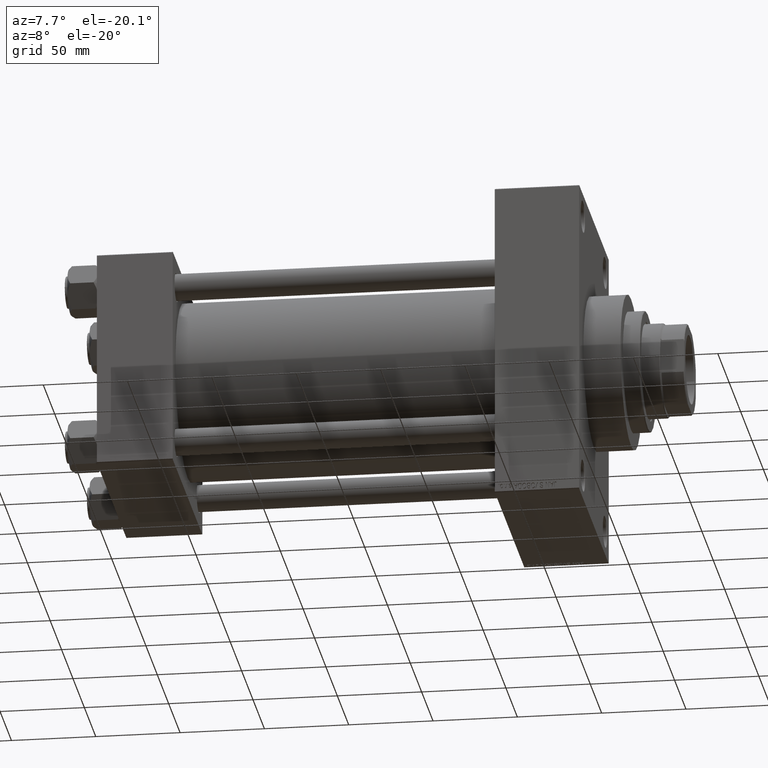
[diagram: clean part render]
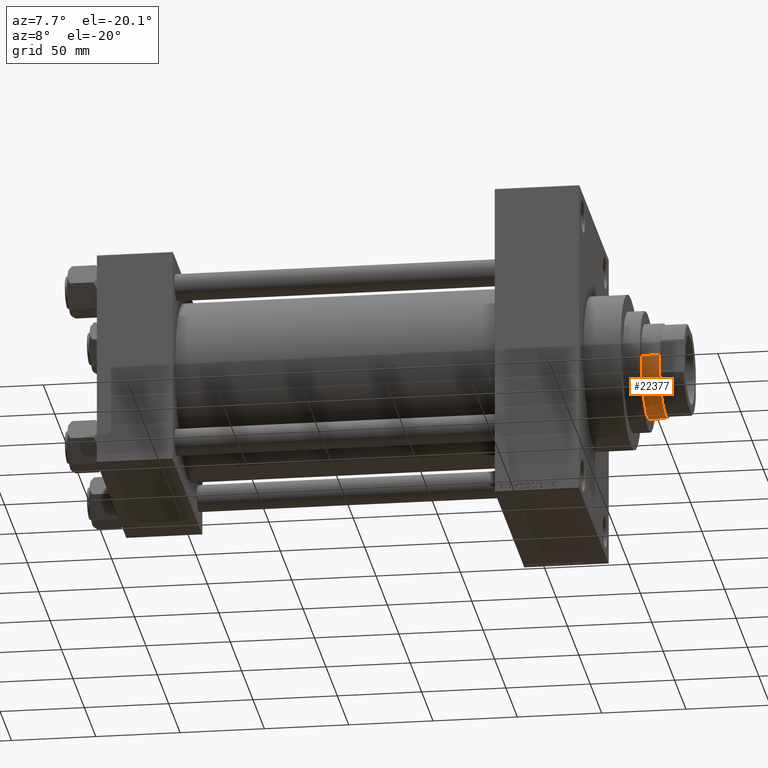
[diagram: same view with one face highlighted and labeled with its STEP entity id]
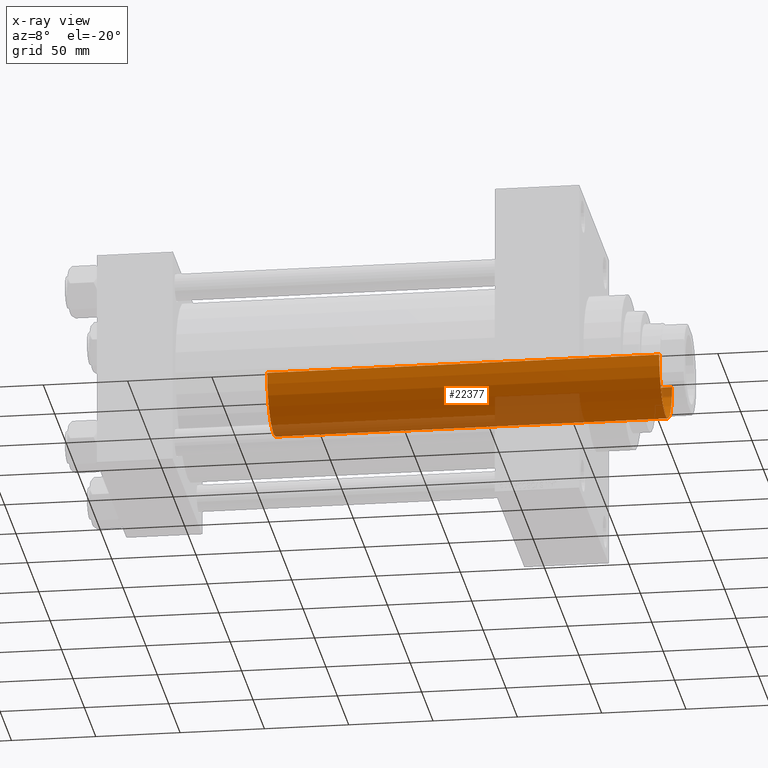
[diagram: x-ray of the same camera — body ghosted, the highlighted face saturated]
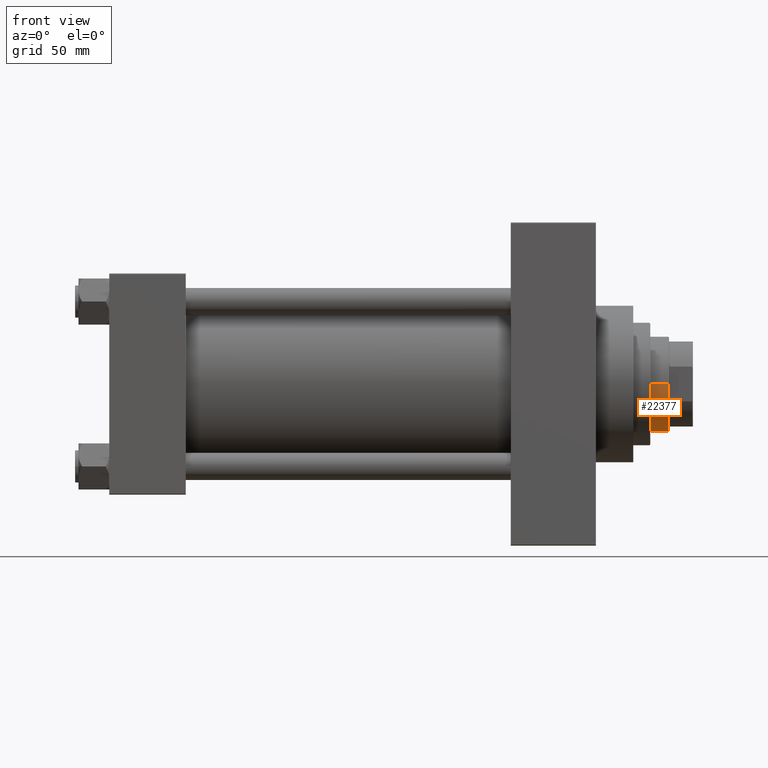
[diagram: same view with one face highlighted and labeled with its STEP entity id]
A machine part, auxiliary view. The second image highlights one B-rep face of the part: STEP entity #22377.
The next image is the same camera in x-ray: the body ghosted, the highlighted face saturated — about 20% of this face is hidden behind the body in this view.
A second angle (front view) of the same face is appended — the face is thin or edge-on in the first view.
In plain terms, the highlighted cylindrical surface (partial cylindrical patch) has radius 28 mm, axis along (-1, 0, 0).
Its self-contained STEP definition (entity closure, byte-faithful):
#27 = LINE ( 'NONE', #4143, #27735 ) ;
#350 = ORIENTED_EDGE ( 'NONE', *, *, #34013, .F. ) ;
#430 = ORIENTED_EDGE ( 'NONE', *, *, #40408, .T. ) ;
#458 = DIRECTION ( 'NONE',  ( 0.000000000000000000, 0.000000000000000000, -1.000000000000000000 ) ) ;
#2321 = VERTEX_POINT ( 'NONE', #18653 ) ;
#3459 = AXIS2_PLACEMENT_3D ( 'NONE', #9982, #24216, #10455 ) ;
#4143 = CARTESIAN_POINT ( 'NONE',  ( -28.00000000000000000, 0.000000000000000000, 284.0000000000000568 ) ) ;
#5892 = CYLINDRICAL_SURFACE ( 'NONE', #3459, 28.00000000000000000 ) ;
#9982 = CARTESIAN_POINT ( 'NONE',  ( 0.000000000000000000, 0.000000000000000000, 284.0000000000000568 ) ) ;
#10222 = VERTEX_POINT ( 'NONE', #12169 ) ;
#10426 = VECTOR ( 'NONE', #29265, 1000.000000000000000 ) ;
#10455 = DIRECTION ( 'NONE',  ( -1.000000000000000000, 0.000000000000000000, 0.000000000000000000 ) ) ;
#10911 = DIRECTION ( 'NONE',  ( -0.000000000000000000, -0.000000000000000000, -1.000000000000000000 ) ) ;
#11332 = ORIENTED_EDGE ( 'NONE', *, *, #45724, .T. ) ;
#12169 = CARTESIAN_POINT ( 'NONE',  ( 28.00000000000000000, 3.429011037612589276E-15, 283.5000000000000568 ) ) ;
#17040 = CIRCLE ( 'NONE', #34766, 28.00000000000000000 ) ;
#17946 = CARTESIAN_POINT ( 'NONE',  ( 0.000000000000000000, 0.000000000000000000, 51.00000000000000000 ) ) ;
#18653 = CARTESIAN_POINT ( 'NONE',  ( -28.00000000000000000, 0.000000000000000000, 51.00000000000000000 ) ) ;
#18800 = CARTESIAN_POINT ( 'NONE',  ( 0.000000000000000000, 0.000000000000000000, 283.5000000000000568 ) ) ;
#21095 = DIRECTION ( 'NONE',  ( 0.000000000000000000, 0.000000000000000000, 1.000000000000000000 ) ) ;
#22255 = CARTESIAN_POINT ( 'NONE',  ( 28.00000000000000000, 3.429011037612589276E-15, 284.0000000000000568 ) ) ;
#22377 = ADVANCED_FACE ( 'NONE', ( #35551 ), #5892, .T. ) ;
#22433 = VERTEX_POINT ( 'NONE', #46884 ) ;
#23304 = EDGE_CURVE ( 'NONE', #10222, #42279, #44460, .T. ) ;
#24216 = DIRECTION ( 'NONE',  ( -0.000000000000000000, -0.000000000000000000, -1.000000000000000000 ) ) ;
#24374 = EDGE_LOOP ( 'NONE', ( #430, #28192, #11332, #350 ) ) ;
#27735 = VECTOR ( 'NONE', #10911, 1000.000000000000000 ) ;
#28192 = ORIENTED_EDGE ( 'NONE', *, *, #23304, .T. ) ;
#29265 = DIRECTION ( 'NONE',  ( -0.000000000000000000, -0.000000000000000000, -1.000000000000000000 ) ) ;
#33475 = AXIS2_PLACEMENT_3D ( 'NONE', #17946, #21095, #43295 ) ;
#34013 = EDGE_CURVE ( 'NONE', #22433, #2321, #27, .T. ) ;
#34766 = AXIS2_PLACEMENT_3D ( 'NONE', #18800, #458, #44635 ) ;
#35551 = FACE_OUTER_BOUND ( 'NONE', #24374, .T. ) ;
#40408 = EDGE_CURVE ( 'NONE', #22433, #10222, #17040, .T. ) ;
#41213 = CIRCLE ( 'NONE', #33475, 28.00000000000000000 ) ;
#42279 = VERTEX_POINT ( 'NONE', #47042 ) ;
#43295 = DIRECTION ( 'NONE',  ( 1.000000000000000000, 0.000000000000000000, 0.000000000000000000 ) ) ;
#44460 = LINE ( 'NONE', #22255, #10426 ) ;
#44635 = DIRECTION ( 'NONE',  ( 1.000000000000000000, 0.000000000000000000, 0.000000000000000000 ) ) ;
#45724 = EDGE_CURVE ( 'NONE', #42279, #2321, #41213, .T. ) ;
#46884 = CARTESIAN_POINT ( 'NONE',  ( -28.00000000000000000, 0.000000000000000000, 283.5000000000000568 ) ) ;
#47042 = CARTESIAN_POINT ( 'NONE',  ( 28.00000000000000000, 3.429011037612589276E-15, 51.00000000000000000 ) ) ;